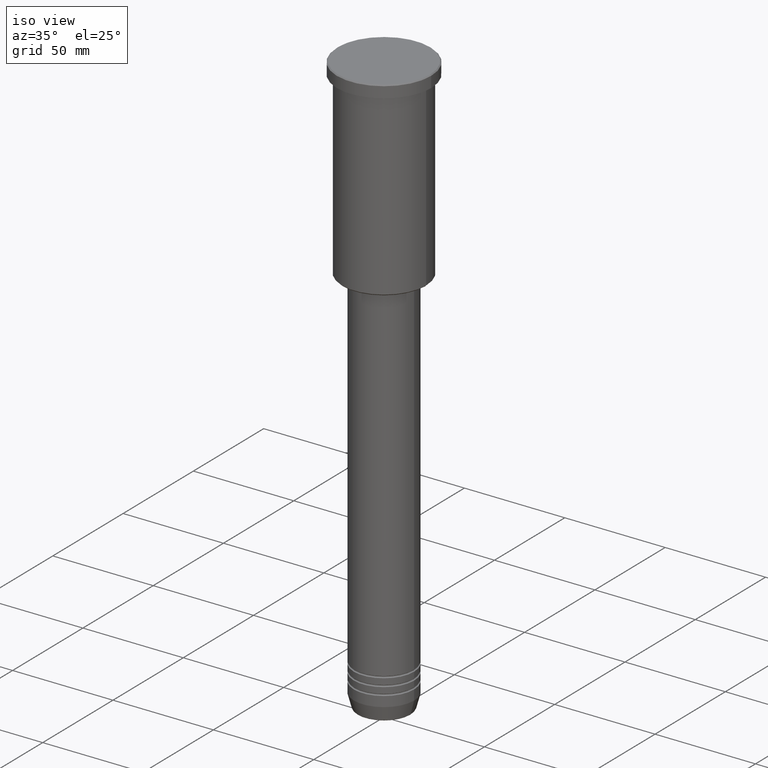
[diagram: clean part render]
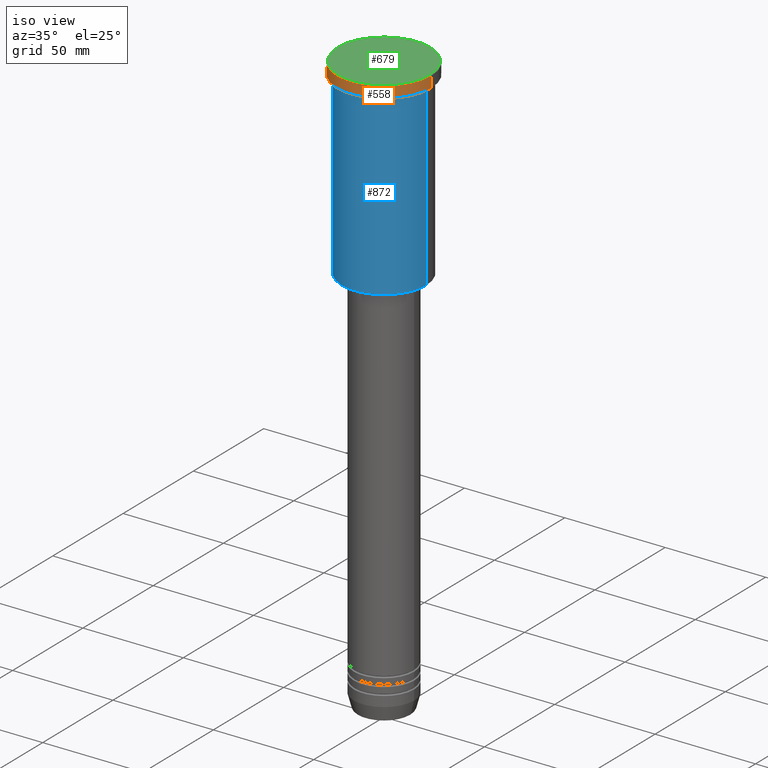
[diagram: same view with three faces highlighted in distinct colors, each labeled with its STEP entity id]
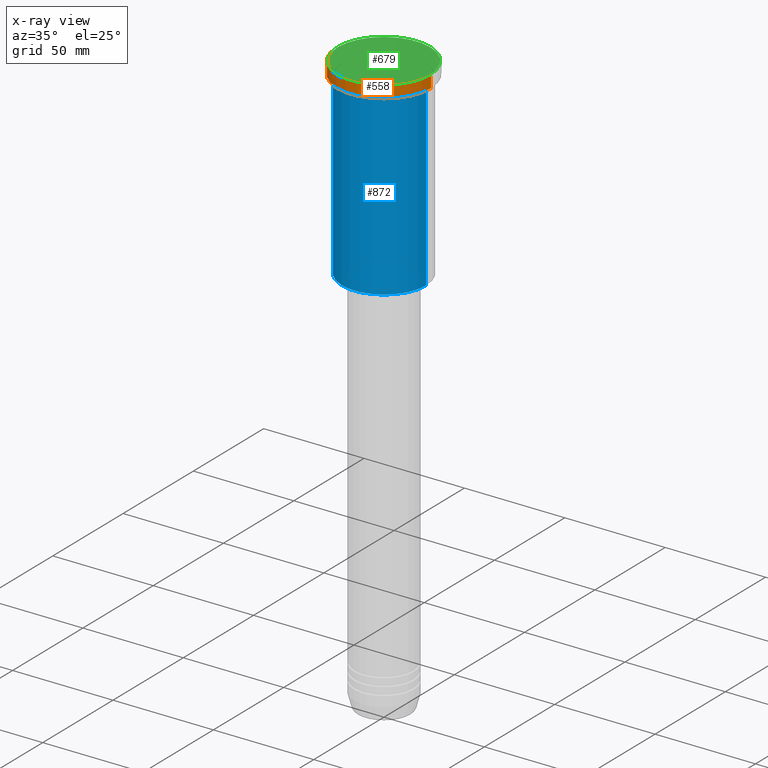
[diagram: x-ray of the same camera — body ghosted, the three highlighted faces saturated]
A machine part, iso view with three faces highlighted in distinct colors.
The next image is the same camera in x-ray (body ghosted, the three faces saturated) — at least one of them is partly hidden behind the body in this view.
Their STEP definitions:

[orange] entity #558 — the highlighted cylindrical surface (partial cylindrical patch) has radius 23.5 mm, axis along (-0, -0, 1).
#23 = AXIS2_PLACEMENT_3D ( 'NONE', #688, #591, #413 ) ;
#62 = CYLINDRICAL_SURFACE ( 'NONE', #885, 23.50000000000000000 ) ;
#73 = EDGE_LOOP ( 'NONE', ( #741, #789, #132, #100 ) ) ;
#100 = ORIENTED_EDGE ( 'NONE', *, *, #198, .T. ) ;
#132 = ORIENTED_EDGE ( 'NONE', *, *, #223, .T. ) ;
#161 = EDGE_CURVE ( 'NONE', #284, #237, #641, .T. ) ;
#183 = CARTESIAN_POINT ( 'NONE',  ( -23.50000000000000000, 2.877919977996280320E-15, -5.999999999999993783 ) ) ;
#195 = CARTESIAN_POINT ( 'NONE',  ( 0.000000000000000000, 0.000000000000000000, -0.5000000000000281997 ) ) ;
#198 = EDGE_CURVE ( 'NONE', #979, #1103, #1018, .T. ) ;
#223 = EDGE_CURVE ( 'NONE', #237, #979, #255, .T. ) ;
#235 = VECTOR ( 'NONE', #988, 1000.000000000000000 ) ;
#237 = VERTEX_POINT ( 'NONE', #361 ) ;
#255 = LINE ( 'NONE', #719, #235 ) ;
#266 = LINE ( 'NONE', #632, #678 ) ;
#284 = VERTEX_POINT ( 'NONE', #183 ) ;
#308 = EDGE_CURVE ( 'NONE', #284, #1103, #266, .T. ) ;
#326 = DIRECTION ( 'NONE',  ( -0.000000000000000000, -0.000000000000000000, 1.000000000000000000 ) ) ;
#344 = DIRECTION ( 'NONE',  ( 1.000000000000000000, 0.000000000000000000, 0.000000000000000000 ) ) ;
#347 = CARTESIAN_POINT ( 'NONE',  ( -23.50000000000000000, 2.877919977996280320E-15, -0.5000000000000281997 ) ) ;
#361 = CARTESIAN_POINT ( 'NONE',  ( 23.50000000000000000, 0.000000000000000000, -5.999999999999993783 ) ) ;
#413 = DIRECTION ( 'NONE',  ( 1.000000000000000000, 0.000000000000000000, 0.000000000000000000 ) ) ;
#419 = CARTESIAN_POINT ( 'NONE',  ( 23.50000000000000000, 0.000000000000000000, -0.5000000000000281997 ) ) ;
#425 = CARTESIAN_POINT ( 'NONE',  ( 0.000000000000000000, 0.000000000000000000, 0.000000000000000000 ) ) ;
#467 = DIRECTION ( 'NONE',  ( 0.000000000000000000, 0.000000000000000000, -1.000000000000000000 ) ) ;
#500 = AXIS2_PLACEMENT_3D ( 'NONE', #195, #467, #344 ) ;
#558 = ADVANCED_FACE ( 'NONE', ( #879 ), #62, .T. ) ;
#591 = DIRECTION ( 'NONE',  ( -0.000000000000000000, -0.000000000000000000, 1.000000000000000000 ) ) ;
#632 = CARTESIAN_POINT ( 'NONE',  ( -23.50000000000000000, 2.877919977996280320E-15, 0.000000000000000000 ) ) ;
#641 = CIRCLE ( 'NONE', #23, 23.50000000000000000 ) ;
#678 = VECTOR ( 'NONE', #1101, 1000.000000000000000 ) ;
#688 = CARTESIAN_POINT ( 'NONE',  ( 0.000000000000000000, 0.000000000000000000, -5.999999999999993783 ) ) ;
#719 = CARTESIAN_POINT ( 'NONE',  ( 23.50000000000000000, 0.000000000000000000, 0.000000000000000000 ) ) ;
#741 = ORIENTED_EDGE ( 'NONE', *, *, #308, .F. ) ;
#789 = ORIENTED_EDGE ( 'NONE', *, *, #161, .T. ) ;
#793 = DIRECTION ( 'NONE',  ( 1.000000000000000000, 0.000000000000000000, 0.000000000000000000 ) ) ;
#879 = FACE_OUTER_BOUND ( 'NONE', #73, .T. ) ;
#885 = AXIS2_PLACEMENT_3D ( 'NONE', #425, #326, #793 ) ;
#979 = VERTEX_POINT ( 'NONE', #419 ) ;
#988 = DIRECTION ( 'NONE',  ( -0.000000000000000000, -0.000000000000000000, 1.000000000000000000 ) ) ;
#1018 = CIRCLE ( 'NONE', #500, 23.50000000000000000 ) ;
#1101 = DIRECTION ( 'NONE',  ( -0.000000000000000000, -0.000000000000000000, 1.000000000000000000 ) ) ;
#1103 = VERTEX_POINT ( 'NONE', #347 ) ;

[blue] entity #872 — the highlighted cylindrical surface (partial cylindrical patch) has radius 21 mm, axis along (-0, -0, 1).
#14 = DIRECTION ( 'NONE',  ( -0.000000000000000000, -0.000000000000000000, 1.000000000000000000 ) ) ;
#44 = ORIENTED_EDGE ( 'NONE', *, *, #614, .F. ) ;
#67 = AXIS2_PLACEMENT_3D ( 'NONE', #634, #275, #269 ) ;
#106 = FACE_OUTER_BOUND ( 'NONE', #877, .T. ) ;
#121 = DIRECTION ( 'NONE',  ( 1.000000000000000000, 0.000000000000000000, 0.000000000000000000 ) ) ;
#135 = LINE ( 'NONE', #498, #316 ) ;
#269 = DIRECTION ( 'NONE',  ( -1.000000000000000000, 0.000000000000000000, 0.000000000000000000 ) ) ;
#275 = DIRECTION ( 'NONE',  ( -0.000000000000000000, -0.000000000000000000, 1.000000000000000000 ) ) ;
#287 = ORIENTED_EDGE ( 'NONE', *, *, #653, .T. ) ;
#297 = AXIS2_PLACEMENT_3D ( 'NONE', #756, #14, #1121 ) ;
#316 = VECTOR ( 'NONE', #862, 1000.000000000000000 ) ;
#423 = ORIENTED_EDGE ( 'NONE', *, *, #860, .F. ) ;
#471 = CYLINDRICAL_SURFACE ( 'NONE', #1134, 21.00000000000000000 ) ;
#498 = CARTESIAN_POINT ( 'NONE',  ( -21.00000000000000000, 2.571758278209441661E-15, 0.000000000000000000 ) ) ;
#520 = VERTEX_POINT ( 'NONE', #1049 ) ;
#535 = EDGE_CURVE ( 'NONE', #837, #854, #858, .T. ) ;
#603 = CIRCLE ( 'NONE', #67, 21.00000000000000000 ) ;
#611 = CARTESIAN_POINT ( 'NONE',  ( 21.00000000000000000, 0.000000000000000000, 0.000000000000000000 ) ) ;
#614 = EDGE_CURVE ( 'NONE', #1046, #520, #135, .T. ) ;
#634 = CARTESIAN_POINT ( 'NONE',  ( 0.000000000000000000, 0.000000000000000000, -95.50000000000004263 ) ) ;
#652 = CARTESIAN_POINT ( 'NONE',  ( 21.00000000000000000, 0.000000000000000000, -95.50000000000004263 ) ) ;
#653 = EDGE_CURVE ( 'NONE', #1046, #837, #603, .T. ) ;
#670 = DIRECTION ( 'NONE',  ( -0.000000000000000000, -0.000000000000000000, 1.000000000000000000 ) ) ;
#698 = VECTOR ( 'NONE', #969, 1000.000000000000000 ) ;
#756 = CARTESIAN_POINT ( 'NONE',  ( 0.000000000000000000, 0.000000000000000000, -6.999999999999993783 ) ) ;
#761 = CARTESIAN_POINT ( 'NONE',  ( 21.00000000000000000, 0.000000000000000000, -6.999999999999993783 ) ) ;
#783 = ORIENTED_EDGE ( 'NONE', *, *, #535, .T. ) ;
#784 = CARTESIAN_POINT ( 'NONE',  ( -21.00000000000000000, 2.571758278209441661E-15, -95.50000000000004263 ) ) ;
#792 = CIRCLE ( 'NONE', #297, 21.00000000000000000 ) ;
#837 = VERTEX_POINT ( 'NONE', #652 ) ;
#854 = VERTEX_POINT ( 'NONE', #761 ) ;
#858 = LINE ( 'NONE', #611, #698 ) ;
#860 = EDGE_CURVE ( 'NONE', #520, #854, #792, .T. ) ;
#862 = DIRECTION ( 'NONE',  ( -0.000000000000000000, -0.000000000000000000, 1.000000000000000000 ) ) ;
#872 = ADVANCED_FACE ( 'NONE', ( #106 ), #471, .T. ) ;
#877 = EDGE_LOOP ( 'NONE', ( #44, #287, #783, #423 ) ) ;
#969 = DIRECTION ( 'NONE',  ( -0.000000000000000000, -0.000000000000000000, 1.000000000000000000 ) ) ;
#1046 = VERTEX_POINT ( 'NONE', #784 ) ;
#1049 = CARTESIAN_POINT ( 'NONE',  ( -21.00000000000000000, 2.571758278209441661E-15, -6.999999999999993783 ) ) ;
#1121 = DIRECTION ( 'NONE',  ( 1.000000000000000000, 0.000000000000000000, 0.000000000000000000 ) ) ;
#1125 = CARTESIAN_POINT ( 'NONE',  ( 0.000000000000000000, 0.000000000000000000, 0.000000000000000000 ) ) ;
#1134 = AXIS2_PLACEMENT_3D ( 'NONE', #1125, #670, #121 ) ;

[green] entity #679 — the highlighted planar face has unit normal (0, -0, 1).
#54 = VERTEX_POINT ( 'NONE', #881 ) ;
#89 = ORIENTED_EDGE ( 'NONE', *, *, #365, .T. ) ;
#136 = EDGE_CURVE ( 'NONE', #54, #822, #164, .T. ) ;
#152 = DIRECTION ( 'NONE',  ( -0.000000000000000000, -0.000000000000000000, 1.000000000000000000 ) ) ;
#164 = CIRCLE ( 'NONE', #448, 22.99999999999999645 ) ;
#209 = CARTESIAN_POINT ( 'NONE',  ( 0.000000000000000000, 0.000000000000000000, 0.000000000000000000 ) ) ;
#217 = DIRECTION ( 'NONE',  ( -0.000000000000000000, -0.000000000000000000, 1.000000000000000000 ) ) ;
#342 = DIRECTION ( 'NONE',  ( 1.000000000000000000, 0.000000000000000000, 0.000000000000000000 ) ) ;
#365 = EDGE_CURVE ( 'NONE', #822, #54, #502, .T. ) ;
#448 = AXIS2_PLACEMENT_3D ( 'NONE', #796, #152, #971 ) ;
#502 = CIRCLE ( 'NONE', #771, 22.99999999999999645 ) ;
#550 = PLANE ( 'NONE',  #1151 ) ;
#679 = ADVANCED_FACE ( 'NONE', ( #1166 ), #550, .T. ) ;
#739 = CARTESIAN_POINT ( 'NONE',  ( 22.99999999999999645, 2.847303808017596139E-15, 0.000000000000000000 ) ) ;
#771 = AXIS2_PLACEMENT_3D ( 'NONE', #209, #217, #1112 ) ;
#796 = CARTESIAN_POINT ( 'NONE',  ( 0.000000000000000000, 0.000000000000000000, 0.000000000000000000 ) ) ;
#822 = VERTEX_POINT ( 'NONE', #739 ) ;
#881 = CARTESIAN_POINT ( 'NONE',  ( -22.99999999999999645, 0.000000000000000000, 0.000000000000000000 ) ) ;
#892 = EDGE_LOOP ( 'NONE', ( #998, #89 ) ) ;
#971 = DIRECTION ( 'NONE',  ( 1.000000000000000000, 0.000000000000000000, 0.000000000000000000 ) ) ;
#998 = ORIENTED_EDGE ( 'NONE', *, *, #136, .T. ) ;
#1097 = CARTESIAN_POINT ( 'NONE',  ( 0.000000000000000000, 0.000000000000000000, 0.000000000000000000 ) ) ;
#1112 = DIRECTION ( 'NONE',  ( 1.000000000000000000, 0.000000000000000000, 0.000000000000000000 ) ) ;
#1151 = AXIS2_PLACEMENT_3D ( 'NONE', #1097, #1160, #342 ) ;
#1160 = DIRECTION ( 'NONE',  ( 0.000000000000000000, -0.000000000000000000, 1.000000000000000000 ) ) ;
#1166 = FACE_OUTER_BOUND ( 'NONE', #892, .T. ) ;